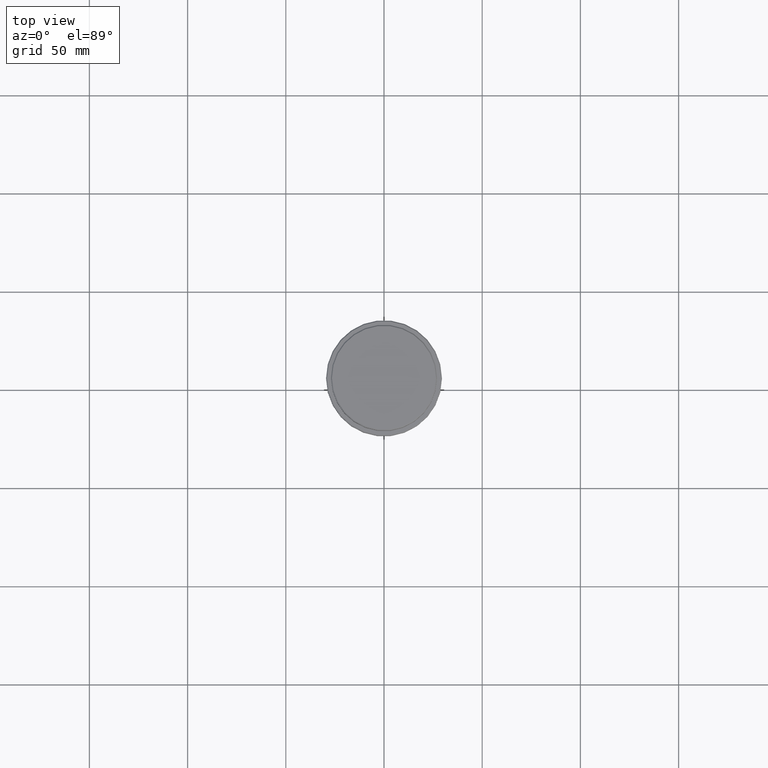
[diagram: clean part render]
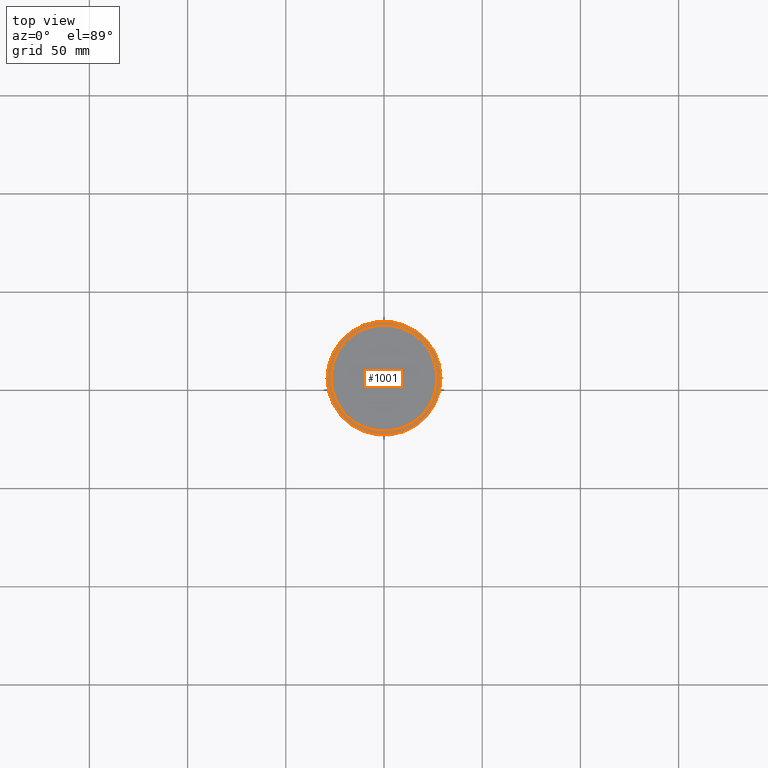
[diagram: same view with one face highlighted and labeled with its STEP entity id]
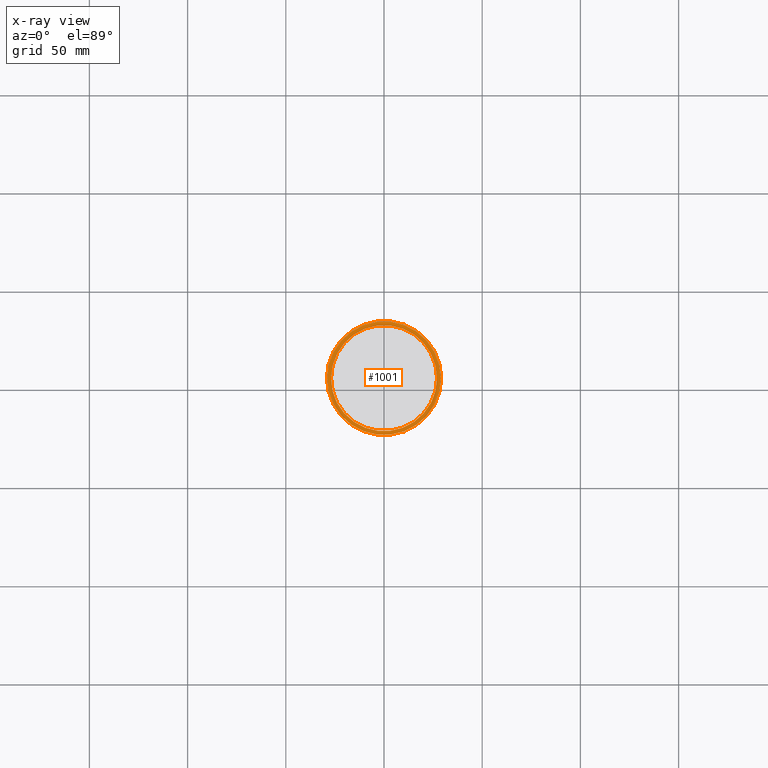
[diagram: x-ray of the same camera — body ghosted, the highlighted face saturated]
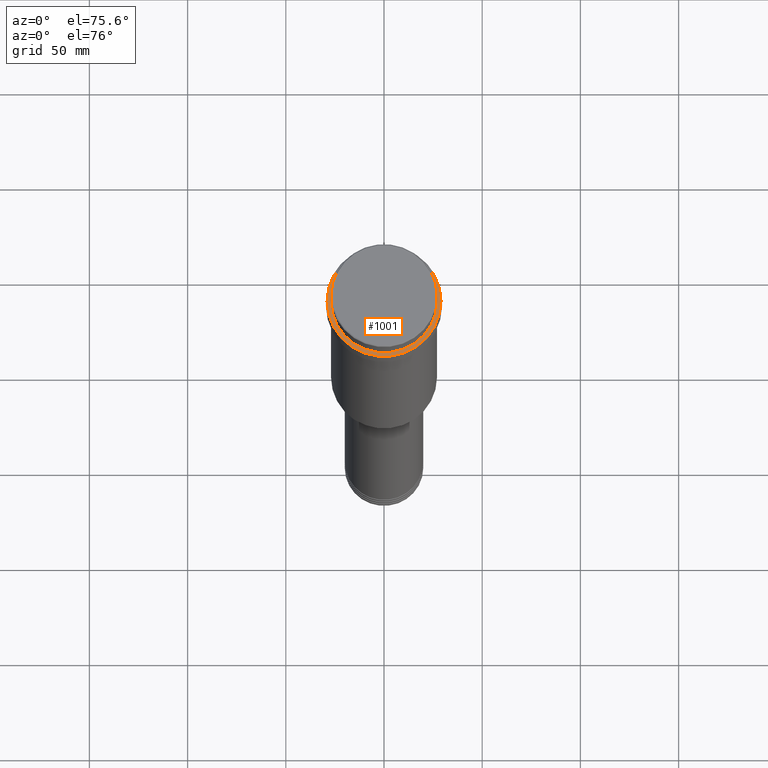
[diagram: same view with one face highlighted and labeled with its STEP entity id]
A machine part, top view. The second image highlights one B-rep face of the part: STEP entity #1001.
The next image is the same camera in x-ray: the body ghosted, the highlighted face saturated — about 0% of this face is hidden behind the body in this view.
A second angle (auxiliary view) of the same face is appended — the face is thin or edge-on in the first view.
In plain terms, the highlighted planar face has unit normal (0, -0, 1).
Its self-contained STEP definition (entity closure, byte-faithful):
#3 = CIRCLE ( 'NONE', #265, 28.99999999999991473 ) ;
#25 = DIRECTION ( 'NONE',  ( 1.000000000000000000, 0.000000000000000000, 0.000000000000000000 ) ) ;
#35 = CARTESIAN_POINT ( 'NONE',  ( -28.99999999999991473, 0.000000000000000000, -12.00000000000000355 ) ) ;
#82 = VERTEX_POINT ( 'NONE', #35 ) ;
#106 = DIRECTION ( 'NONE',  ( 1.000000000000000000, 0.000000000000000000, 0.000000000000000000 ) ) ;
#143 = CARTESIAN_POINT ( 'NONE',  ( 28.99999999999991473, 3.582091887506003084E-15, -12.00000000000000355 ) ) ;
#168 = CARTESIAN_POINT ( 'NONE',  ( 0.000000000000000000, 26.49999999999999645, -12.00000000000000355 ) ) ;
#202 = CARTESIAN_POINT ( 'NONE',  ( 0.000000000000000000, 0.000000000000000000, -12.00000000000000355 ) ) ;
#265 = AXIS2_PLACEMENT_3D ( 'NONE', #879, #1408, #106 ) ;
#271 = CARTESIAN_POINT ( 'NONE',  ( -26.99999999999999645, 3.306546357697853339E-15, -12.00000000000000355 ) ) ;
#301 = CARTESIAN_POINT ( 'NONE',  ( 26.99999999999999645, 0.000000000000000000, -12.00000000000000355 ) ) ;
#357 = VERTEX_POINT ( 'NONE', #143 ) ;
#359 = EDGE_CURVE ( 'NONE', #989, #599, #856, .T. ) ;
#378 = CARTESIAN_POINT ( 'NONE',  ( 0.000000000000000000, 0.000000000000000000, -12.00000000000000355 ) ) ;
#395 = DIRECTION ( 'NONE',  ( 1.000000000000000000, 0.000000000000000000, 0.000000000000000000 ) ) ;
#463 = AXIS2_PLACEMENT_3D ( 'NONE', #168, #1180, #395 ) ;
#483 = EDGE_CURVE ( 'NONE', #82, #357, #735, .T. ) ;
#492 = DIRECTION ( 'NONE',  ( 0.000000000000000000, 0.000000000000000000, -1.000000000000000000 ) ) ;
#562 = DIRECTION ( 'NONE',  ( -0.000000000000000000, -0.000000000000000000, 1.000000000000000000 ) ) ;
#599 = VERTEX_POINT ( 'NONE', #271 ) ;
#607 = ORIENTED_EDGE ( 'NONE', *, *, #693, .T. ) ;
#631 = PLANE ( 'NONE',  #463 ) ;
#693 = EDGE_CURVE ( 'NONE', #357, #82, #3, .T. ) ;
#720 = DIRECTION ( 'NONE',  ( 1.000000000000000000, 0.000000000000000000, 0.000000000000000000 ) ) ;
#735 = CIRCLE ( 'NONE', #1275, 28.99999999999991473 ) ;
#746 = FACE_OUTER_BOUND ( 'NONE', #861, .T. ) ;
#856 = CIRCLE ( 'NONE', #973, 26.99999999999999645 ) ;
#861 = EDGE_LOOP ( 'NONE', ( #960, #607 ) ) ;
#879 = CARTESIAN_POINT ( 'NONE',  ( 0.000000000000000000, 0.000000000000000000, -12.00000000000000355 ) ) ;
#960 = ORIENTED_EDGE ( 'NONE', *, *, #483, .T. ) ;
#973 = AXIS2_PLACEMENT_3D ( 'NONE', #202, #1034, #25 ) ;
#989 = VERTEX_POINT ( 'NONE', #301 ) ;
#1001 = ADVANCED_FACE ( 'NONE', ( #746, #1167 ), #631, .T. ) ;
#1034 = DIRECTION ( 'NONE',  ( 0.000000000000000000, 0.000000000000000000, -1.000000000000000000 ) ) ;
#1047 = AXIS2_PLACEMENT_3D ( 'NONE', #378, #492, #720 ) ;
#1066 = CIRCLE ( 'NONE', #1047, 26.99999999999999645 ) ;
#1068 = EDGE_LOOP ( 'NONE', ( #1211, #1391 ) ) ;
#1167 = FACE_BOUND ( 'NONE', #1068, .T. ) ;
#1180 = DIRECTION ( 'NONE',  ( 0.000000000000000000, -0.000000000000000000, 1.000000000000000000 ) ) ;
#1181 = EDGE_CURVE ( 'NONE', #599, #989, #1066, .T. ) ;
#1192 = DIRECTION ( 'NONE',  ( 1.000000000000000000, 0.000000000000000000, 0.000000000000000000 ) ) ;
#1211 = ORIENTED_EDGE ( 'NONE', *, *, #359, .T. ) ;
#1220 = CARTESIAN_POINT ( 'NONE',  ( 0.000000000000000000, 0.000000000000000000, -12.00000000000000355 ) ) ;
#1275 = AXIS2_PLACEMENT_3D ( 'NONE', #1220, #562, #1192 ) ;
#1391 = ORIENTED_EDGE ( 'NONE', *, *, #1181, .T. ) ;
#1408 = DIRECTION ( 'NONE',  ( -0.000000000000000000, -0.000000000000000000, 1.000000000000000000 ) ) ;